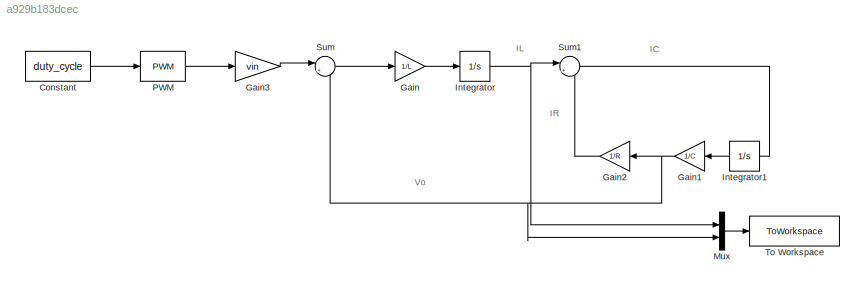
MODEL slx_a929b183dcec
KIND model
CONFIG AbsTol = auto
CONFIG EnableMultiTasking = off
CONFIG FixedStep = auto
CONFIG MaxStep = auto
CONFIG MinStep = auto
CONFIG RelTol = 1e-3
CONFIG SampleTimeConstraint = Unconstrained
CONFIG SolverName = VariableStepAuto
CONFIG StartTime = 0.0
CONFIG StopTime = 2
BLOCK [Constant] Constant
  Value = duty_cycle
BLOCK [Gain] Gain
  Gain = 1/L
BLOCK [Gain] Gain1
  Gain = 1/C
  NameLocation = top
BLOCK [Gain] Gain2
  Gain = 1/R
  NameLocation = top
BLOCK [Gain] Gain3
  Gain = vin
BLOCK [Integrator] Integrator
BLOCK [Integrator] Integrator1
  NameLocation = top
BLOCK [Mux] Mux
  DisplayOption = bar
  Inputs = 2
BLOCK [Reference] PWM  REF=simulink/Discontinuities/PWM
  DisableCoverage = on
  SourceBlock = simulink/Discontinuities/PWM
  SourceType = PWM
BLOCK [Sum] Sum
  Inputs = |+-
BLOCK [Sum] Sum1
  Inputs = |+-
BLOCK [ToWorkspace] To Workspace
  FixptAsFi = on
  MaxDataPoints = inf
  SampleTime = -1
  Save2DSignal = 2-D array (concatenate along first dimension)
  VariableName = simout
ANNOTATION (root): IC
ANNOTATION (root): IL
ANNOTATION (root): IR
ANNOTATION (root): Vo
LINE Constant:1 -> PWM:1
NET Gain1:1 -> Gain2:1, Mux:2, Sum:2
LINE Gain2:1 -> Sum1:2
LINE Gain3:1 -> Sum:1
LINE Gain:1 -> Integrator:1
LINE Integrator1:1 -> Gain1:1
NET Integrator:1 -> Mux:1, Sum1:1
LINE Mux:1 -> To Workspace:1
LINE PWM:1 -> Gain3:1
LINE Sum1:1 -> Integrator1:1
LINE Sum:1 -> Gain:1
note: NET lines group one-source signal fan-out (src -> all destinations, sorted); 1:1 wires keep LINE
